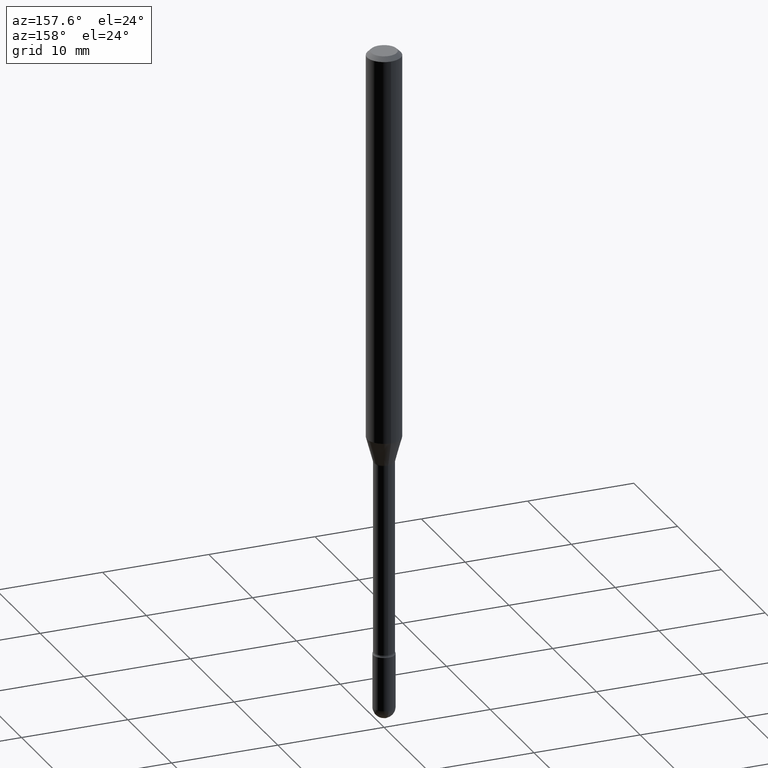
[diagram: clean part render]
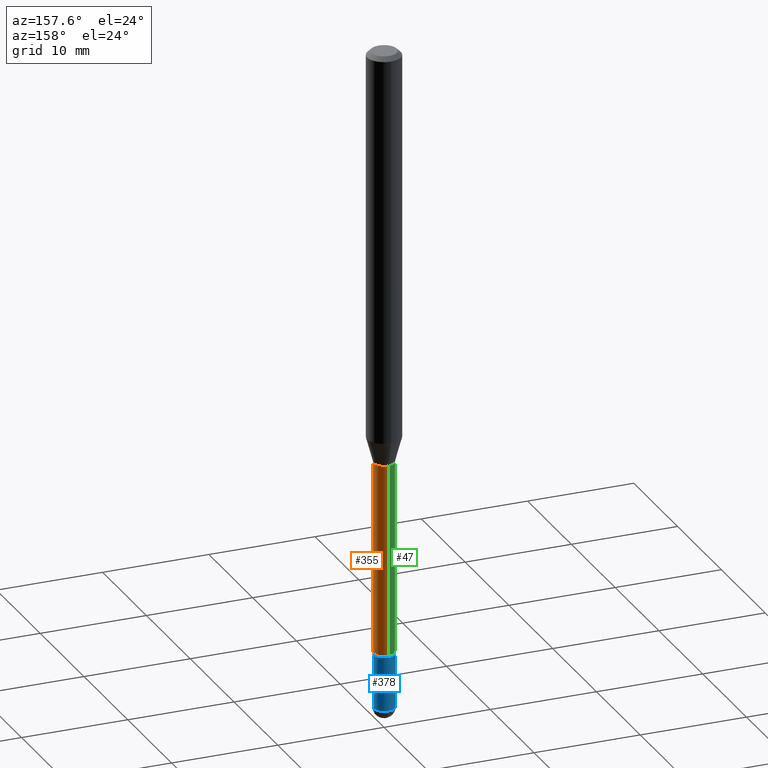
[diagram: same view with three faces highlighted in distinct colors, each labeled with its STEP entity id]
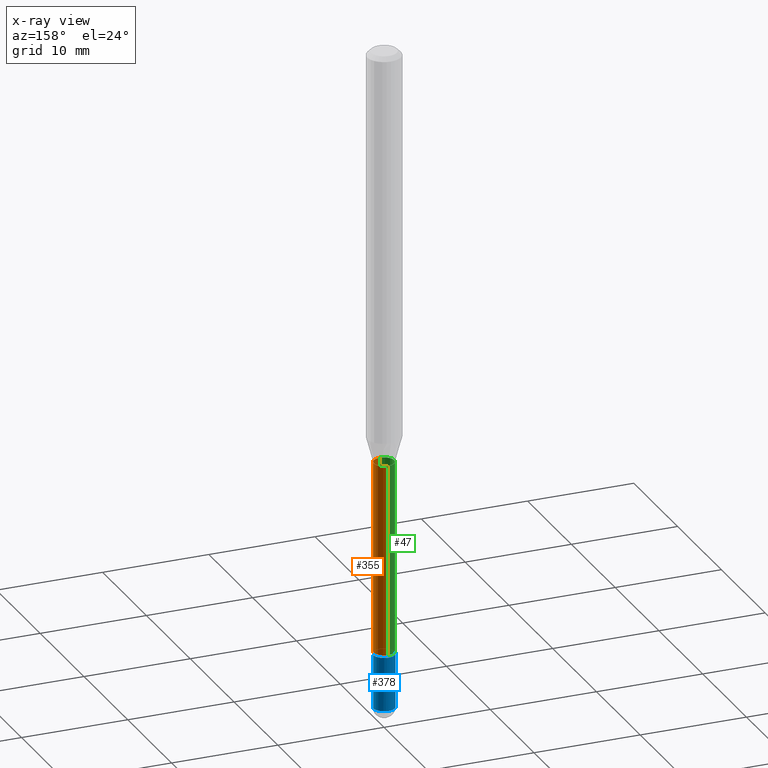
[diagram: x-ray of the same camera — body ghosted, the three highlighted faces saturated]
A machine part, auxiliary view with three faces highlighted in distinct colors.
The next image is the same camera in x-ray (body ghosted, the three faces saturated) — at least one of them is partly hidden behind the body in this view.
Their STEP definitions:

[orange] entity #355 — the highlighted cylindrical surface (edge-blend (fillet) strip) has radius 0.955 mm, axis along (-0, 0, 1).
#2 = CIRCLE ( 'NONE', #558, 0.03760000000000000148 ) ;
#9 = DIRECTION ( 'NONE',  ( -2.445449326693585352E-29, 3.491509234583750788E-15, 1.000000000000000000 ) ) ;
#29 = VECTOR ( 'NONE', #9, 39.37007874015748143 ) ;
#41 = VERTEX_POINT ( 'NONE', #204 ) ;
#52 = DIRECTION ( 'NONE',  ( -2.445449326693585352E-29, 3.491509234583750788E-15, 1.000000000000000000 ) ) ;
#88 = CARTESIAN_POINT ( 'NONE',  ( -2.625593966810039482E-16, -0.03760000000000005005, 6.093541461115952163E-16 ) ) ;
#96 = DIRECTION ( 'NONE',  ( -6.982962677686265922E-15, -1.000000000000000000, 0.000000000000000000 ) ) ;
#100 = DIRECTION ( 'NONE',  ( -6.982962677686265922E-15, -1.000000000000000000, 3.491509234583749999E-15 ) ) ;
#101 = CYLINDRICAL_SURFACE ( 'NONE', #436, 0.03760000000000005005 ) ;
#109 = EDGE_CURVE ( 'NONE', #139, #252, #533, .T. ) ;
#110 = EDGE_CURVE ( 'NONE', #139, #41, #371, .T. ) ;
#115 = EDGE_CURVE ( 'NONE', #252, #550, #2, .T. ) ;
#126 = DIRECTION ( 'NONE',  ( -2.445449326693585071E-29, 3.491509234583751183E-15, 1.000000000000000000 ) ) ;
#139 = VERTEX_POINT ( 'NONE', #486 ) ;
#146 = ORIENTED_EDGE ( 'NONE', *, *, #375, .T. ) ;
#178 = DIRECTION ( 'NONE',  ( -6.982962677686265133E-15, -1.000000000000000000, 0.000000000000000000 ) ) ;
#204 = CARTESIAN_POINT ( 'NONE',  ( 2.756905814749742978E-16, 0.03759999999999222992, -2.251861204020249918 ) ) ;
#227 = CARTESIAN_POINT ( 'NONE',  ( 3.770821205781859138E-29, -5.383819209925211382E-15, -1.541974787463810781 ) ) ;
#252 = VERTEX_POINT ( 'NONE', #566 ) ;
#253 = CARTESIAN_POINT ( 'NONE',  ( 2.671640686458530486E-16, 0.03759999999999462383, -1.541974787463810781 ) ) ;
#284 = EDGE_LOOP ( 'NONE', ( #331, #146, #386, #561 ) ) ;
#304 = VECTOR ( 'NONE', #52, 39.37007874015748143 ) ;
#327 = LINE ( 'NONE', #508, #304 ) ;
#331 = ORIENTED_EDGE ( 'NONE', *, *, #110, .T. ) ;
#350 = AXIS2_PLACEMENT_3D ( 'NONE', #532, #449, #178 ) ;
#355 = ADVANCED_FACE ( 'NONE', ( #501 ), #101, .T. ) ;
#371 = CIRCLE ( 'NONE', #350, 0.03760000000000009168 ) ;
#375 = EDGE_CURVE ( 'NONE', #41, #550, #327, .T. ) ;
#386 = ORIENTED_EDGE ( 'NONE', *, *, #115, .F. ) ;
#414 = CARTESIAN_POINT ( 'NONE',  ( -1.169113584055446105E-44, 1.669184350826100908E-30, 4.780733988912460139E-16 ) ) ;
#436 = AXIS2_PLACEMENT_3D ( 'NONE', #414, #512, #100 ) ;
#449 = DIRECTION ( 'NONE',  ( -2.445449326693585071E-29, 3.491509234583751183E-15, 1.000000000000000000 ) ) ;
#486 = CARTESIAN_POINT ( 'NONE',  ( -2.625593966809491224E-16, -0.03760000000000795345, -2.251861204020249918 ) ) ;
#501 = FACE_OUTER_BOUND ( 'NONE', #284, .T. ) ;
#508 = CARTESIAN_POINT ( 'NONE',  ( 2.671640686457979762E-16, 0.03760000000000005005, 3.467926516708968115E-16 ) ) ;
#512 = DIRECTION ( 'NONE',  ( -2.445449326693585071E-29, 3.491509234583751183E-15, 1.000000000000000000 ) ) ;
#532 = CARTESIAN_POINT ( 'NONE',  ( 5.506812465178726754E-29, -7.862394188837587013E-15, -2.251861204020249918 ) ) ;
#533 = LINE ( 'NONE', #88, #29 ) ;
#550 = VERTEX_POINT ( 'NONE', #253 ) ;
#558 = AXIS2_PLACEMENT_3D ( 'NONE', #227, #126, #96 ) ;
#561 = ORIENTED_EDGE ( 'NONE', *, *, #109, .F. ) ;
#566 = CARTESIAN_POINT ( 'NONE',  ( -2.625593966809658857E-16, -0.03760000000000538606, -1.541974787463810781 ) ) ;

[blue] entity #378 — the highlighted cylindrical surface (edge-blend (fillet) strip) has radius 1.016 mm, axis along (-0, 0, 1).
#17 = DIRECTION ( 'NONE',  ( -2.445468806185136597E-29, 3.491481338843145583E-15, 1.000000000000000000 ) ) ;
#19 = CIRCLE ( 'NONE', #316, 0.03999999999999999389 ) ;
#32 = EDGE_CURVE ( 'NONE', #242, #312, #58, .T. ) ;
#58 = LINE ( 'NONE', #236, #537 ) ;
#63 = VECTOR ( 'NONE', #121, 39.37007874015748143 ) ;
#69 = ORIENTED_EDGE ( 'NONE', *, *, #507, .T. ) ;
#86 = VERTEX_POINT ( 'NONE', #195 ) ;
#97 = CARTESIAN_POINT ( 'NONE',  ( 6.015853263215436432E-29, -8.589044093554138346E-15, -2.459999999999999964 ) ) ;
#102 = ORIENTED_EDGE ( 'NONE', *, *, #32, .F. ) ;
#119 = CIRCLE ( 'NONE', #506, 0.04000000000000000083 ) ;
#121 = DIRECTION ( 'NONE',  ( -2.445468806185136877E-29, 3.491481338843145188E-15, 1.000000000000000000 ) ) ;
#123 = DIRECTION ( 'NONE',  ( -2.445468806185136597E-29, 3.491481338843145583E-15, 1.000000000000000000 ) ) ;
#141 = CARTESIAN_POINT ( 'NONE',  ( -0.03999999999999999389, -7.955678865365783106E-15, -2.459999999999999964 ) ) ;
#148 = VERTEX_POINT ( 'NONE', #497 ) ;
#170 = AXIS2_PLACEMENT_3D ( 'NONE', #411, #464, #274 ) ;
#190 = CARTESIAN_POINT ( 'NONE',  ( 0.000000000000000000, 0.000000000000000000, 0.000000000000000000 ) ) ;
#193 = LINE ( 'NONE', #203, #63 ) ;
#195 = CARTESIAN_POINT ( 'NONE',  ( 2.793185071075109275E-16, 0.03999999999999143130, -2.460000000000000409 ) ) ;
#197 = CARTESIAN_POINT ( 'NONE',  ( 5.526759501978408888E-29, -7.890747825785510097E-15, -2.260000000000000231 ) ) ;
#201 = DIRECTION ( 'NONE',  ( -2.445468806185136877E-29, 3.491481338843145188E-15, 1.000000000000000000 ) ) ;
#203 = CARTESIAN_POINT ( 'NONE',  ( -0.04000000000000000083, 2.842170943040400803E-16, -1.967574036101962509E-30 ) ) ;
#229 = FACE_OUTER_BOUND ( 'NONE', #477, .T. ) ;
#231 = EDGE_CURVE ( 'NONE', #86, #374, #19, .T. ) ;
#236 = CARTESIAN_POINT ( 'NONE',  ( 0.04000000000000000083, -2.793185071074506290E-16, 1.950470710318374387E-30 ) ) ;
#242 = VERTEX_POINT ( 'NONE', #439 ) ;
#272 = DIRECTION ( 'NONE',  ( 1.000000000000000000, -6.982962677686260400E-15, 0.000000000000000000 ) ) ;
#274 = DIRECTION ( 'NONE',  ( 1.000000000000000000, -6.982962677686260400E-15, 0.000000000000000000 ) ) ;
#279 = CYLINDRICAL_SURFACE ( 'NONE', #454, 0.04000000000000000083 ) ;
#297 = ORIENTED_EDGE ( 'NONE', *, *, #307, .T. ) ;
#307 = EDGE_CURVE ( 'NONE', #242, #86, #430, .T. ) ;
#312 = VERTEX_POINT ( 'NONE', #321 ) ;
#316 = AXIS2_PLACEMENT_3D ( 'NONE', #97, #123, #272 ) ;
#321 = CARTESIAN_POINT ( 'NONE',  ( 0.04000000000000000083, -8.170066332892960135E-15, -2.260000000000000231 ) ) ;
#373 = DIRECTION ( 'NONE',  ( 1.000000000000000000, -6.982962677686265922E-15, 4.876176775795935793E-29 ) ) ;
#374 = VERTEX_POINT ( 'NONE', #141 ) ;
#378 = ADVANCED_FACE ( 'NONE', ( #229 ), #279, .T. ) ;
#388 = DIRECTION ( 'NONE',  ( -2.445468806185136597E-29, 3.491481338843145583E-15, 1.000000000000000000 ) ) ;
#411 = CARTESIAN_POINT ( 'NONE',  ( 6.015853263215436432E-29, -8.589044093554138346E-15, -2.459999999999999964 ) ) ;
#430 = CIRCLE ( 'NONE', #170, 0.03999999999999999389 ) ;
#439 = CARTESIAN_POINT ( 'NONE',  ( 0.03999999999999999389, -8.519214466777273470E-15, -2.459999999999999964 ) ) ;
#454 = AXIS2_PLACEMENT_3D ( 'NONE', #190, #17, #373 ) ;
#462 = ORIENTED_EDGE ( 'NONE', *, *, #231, .T. ) ;
#464 = DIRECTION ( 'NONE',  ( -2.445468806185136597E-29, 3.491481338843145583E-15, 1.000000000000000000 ) ) ;
#477 = EDGE_LOOP ( 'NONE', ( #462, #69, #554, #102, #297 ) ) ;
#497 = CARTESIAN_POINT ( 'NONE',  ( -0.04000000000000000083, -7.955678865365783106E-15, -2.260000000000000231 ) ) ;
#506 = AXIS2_PLACEMENT_3D ( 'NONE', #197, #388, #552 ) ;
#507 = EDGE_CURVE ( 'NONE', #374, #148, #193, .T. ) ;
#537 = VECTOR ( 'NONE', #201, 39.37007874015748143 ) ;
#541 = EDGE_CURVE ( 'NONE', #312, #148, #119, .T. ) ;
#552 = DIRECTION ( 'NONE',  ( 1.000000000000000000, -6.982962677686259611E-15, 0.000000000000000000 ) ) ;
#554 = ORIENTED_EDGE ( 'NONE', *, *, #541, .F. ) ;

[green] entity #47 — the highlighted cylindrical surface (edge-blend (fillet) strip) has radius 0.955 mm, axis along (-0, 0, 1).
#9 = DIRECTION ( 'NONE',  ( -2.445449326693585352E-29, 3.491509234583750788E-15, 1.000000000000000000 ) ) ;
#14 = DIRECTION ( 'NONE',  ( -2.445449326693585071E-29, 3.491509234583751183E-15, 1.000000000000000000 ) ) ;
#29 = VECTOR ( 'NONE', #9, 39.37007874015748143 ) ;
#41 = VERTEX_POINT ( 'NONE', #204 ) ;
#47 = ADVANCED_FACE ( 'NONE', ( #183 ), #323, .T. ) ;
#52 = DIRECTION ( 'NONE',  ( -2.445449326693585352E-29, 3.491509234583750788E-15, 1.000000000000000000 ) ) ;
#68 = ORIENTED_EDGE ( 'NONE', *, *, #109, .T. ) ;
#88 = CARTESIAN_POINT ( 'NONE',  ( -2.625593966810039482E-16, -0.03760000000000005005, 6.093541461115952163E-16 ) ) ;
#106 = ORIENTED_EDGE ( 'NONE', *, *, #384, .F. ) ;
#109 = EDGE_CURVE ( 'NONE', #139, #252, #533, .T. ) ;
#118 = DIRECTION ( 'NONE',  ( -6.982962677686265133E-15, -1.000000000000000000, 0.000000000000000000 ) ) ;
#139 = VERTEX_POINT ( 'NONE', #486 ) ;
#180 = AXIS2_PLACEMENT_3D ( 'NONE', #502, #276, #455 ) ;
#183 = FACE_OUTER_BOUND ( 'NONE', #188, .T. ) ;
#188 = EDGE_LOOP ( 'NONE', ( #198, #392, #68, #106 ) ) ;
#198 = ORIENTED_EDGE ( 'NONE', *, *, #375, .F. ) ;
#199 = AXIS2_PLACEMENT_3D ( 'NONE', #461, #14, #237 ) ;
#204 = CARTESIAN_POINT ( 'NONE',  ( 2.756905814749742978E-16, 0.03759999999999222992, -2.251861204020249918 ) ) ;
#237 = DIRECTION ( 'NONE',  ( -6.982962677686265922E-15, -1.000000000000000000, 0.000000000000000000 ) ) ;
#248 = CARTESIAN_POINT ( 'NONE',  ( 5.506812465178726754E-29, -7.862394188837587013E-15, -2.251861204020249918 ) ) ;
#252 = VERTEX_POINT ( 'NONE', #566 ) ;
#253 = CARTESIAN_POINT ( 'NONE',  ( 2.671640686458530486E-16, 0.03759999999999462383, -1.541974787463810781 ) ) ;
#276 = DIRECTION ( 'NONE',  ( -2.445449326693585071E-29, 3.491509234583751183E-15, 1.000000000000000000 ) ) ;
#304 = VECTOR ( 'NONE', #52, 39.37007874015748143 ) ;
#323 = CYLINDRICAL_SURFACE ( 'NONE', #180, 0.03760000000000005005 ) ;
#327 = LINE ( 'NONE', #508, #304 ) ;
#375 = EDGE_CURVE ( 'NONE', #41, #550, #327, .T. ) ;
#381 = CIRCLE ( 'NONE', #199, 0.03760000000000000148 ) ;
#384 = EDGE_CURVE ( 'NONE', #550, #252, #381, .T. ) ;
#392 = ORIENTED_EDGE ( 'NONE', *, *, #441, .T. ) ;
#402 = AXIS2_PLACEMENT_3D ( 'NONE', #248, #518, #118 ) ;
#433 = CIRCLE ( 'NONE', #402, 0.03760000000000009168 ) ;
#441 = EDGE_CURVE ( 'NONE', #41, #139, #433, .T. ) ;
#455 = DIRECTION ( 'NONE',  ( -6.982962677686265922E-15, -1.000000000000000000, 3.491509234583749999E-15 ) ) ;
#461 = CARTESIAN_POINT ( 'NONE',  ( 3.770821205781859138E-29, -5.383819209925211382E-15, -1.541974787463810781 ) ) ;
#486 = CARTESIAN_POINT ( 'NONE',  ( -2.625593966809491224E-16, -0.03760000000000795345, -2.251861204020249918 ) ) ;
#502 = CARTESIAN_POINT ( 'NONE',  ( -1.169113584055446105E-44, 1.669184350826100908E-30, 4.780733988912460139E-16 ) ) ;
#508 = CARTESIAN_POINT ( 'NONE',  ( 2.671640686457979762E-16, 0.03760000000000005005, 3.467926516708968115E-16 ) ) ;
#518 = DIRECTION ( 'NONE',  ( -2.445449326693585071E-29, 3.491509234583751183E-15, 1.000000000000000000 ) ) ;
#533 = LINE ( 'NONE', #88, #29 ) ;
#550 = VERTEX_POINT ( 'NONE', #253 ) ;
#566 = CARTESIAN_POINT ( 'NONE',  ( -2.625593966809658857E-16, -0.03760000000000538606, -1.541974787463810781 ) ) ;